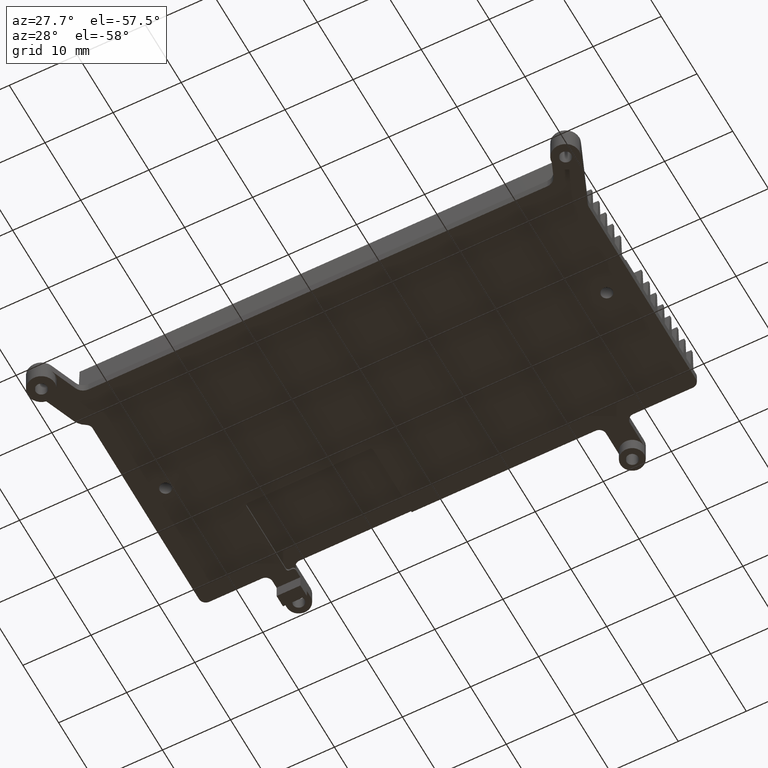
[diagram: clean part render]
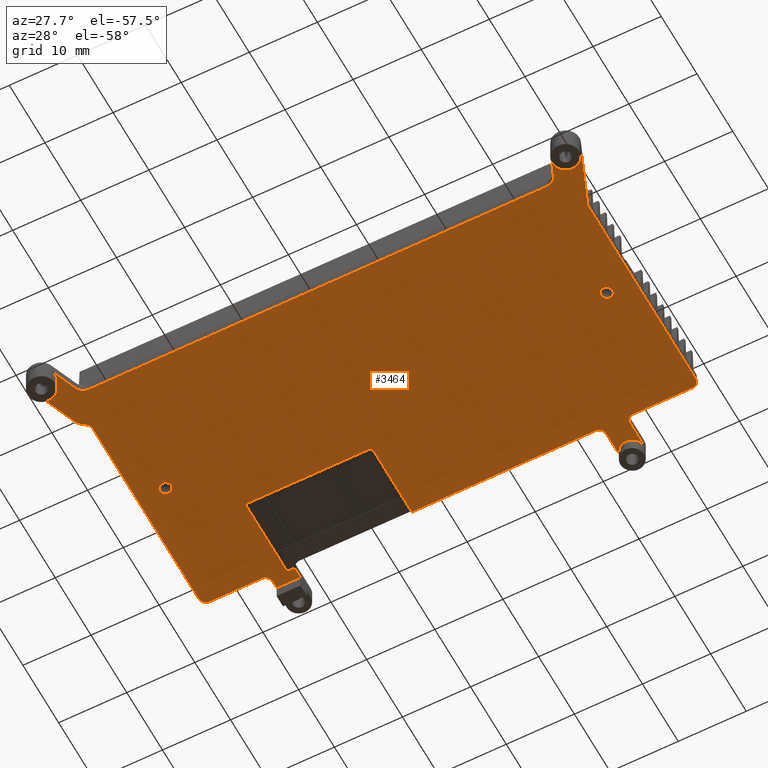
[diagram: same view with one face highlighted and labeled with its STEP entity id]
A machine part, auxiliary view. The second image highlights one B-rep face of the part: STEP entity #3464.
In plain terms, the highlighted planar face has unit normal (0, 0, -1).
Its self-contained STEP definition (entity closure, byte-faithful):
#7 = VERTEX_POINT ( 'NONE', #2980 ) ;
#32 = CARTESIAN_POINT ( 'NONE',  ( -40.31943022758854767, -24.95338786627615235, -7.400000000000000355 ) ) ;
#44 = ORIENTED_EDGE ( 'NONE', *, *, #4306, .T. ) ;
#47 = AXIS2_PLACEMENT_3D ( 'NONE', #1190, #872, #3624 ) ;
#63 = DIRECTION ( 'NONE',  ( 0.0000000000000000000, 0.0000000000000000000, -1.000000000000000000 ) ) ;
#93 = EDGE_CURVE ( 'NONE', #3641, #2538, #3235, .T. ) ;
#111 = PLANE ( 'NONE',  #2159 ) ;
#125 = VERTEX_POINT ( 'NONE', #1673 ) ;
#127 = ORIENTED_EDGE ( 'NONE', *, *, #2440, .T. ) ;
#136 = ORIENTED_EDGE ( 'NONE', *, *, #3062, .T. ) ;
#177 = VERTEX_POINT ( 'NONE', #2824 ) ;
#178 = AXIS2_PLACEMENT_3D ( 'NONE', #3404, #3744, #3428 ) ;
#190 = VERTEX_POINT ( 'NONE', #3799 ) ;
#208 = DIRECTION ( 'NONE',  ( 0.0000000000000000000, -1.000000000000000000, 0.0000000000000000000 ) ) ;
#216 = CARTESIAN_POINT ( 'NONE',  ( 51.58500000000000085, 14.53570848731999909, -7.400000000000000355 ) ) ;
#226 = VERTEX_POINT ( 'NONE', #2415 ) ;
#229 = VERTEX_POINT ( 'NONE', #4575 ) ;
#231 = CARTESIAN_POINT ( 'NONE',  ( -35.99940000000000140, -30.20401168865000230, -7.400000000000000355 ) ) ;
#235 = LINE ( 'NONE', #2216, #3857 ) ;
#243 = AXIS2_PLACEMENT_3D ( 'NONE', #3002, #570, #951 ) ;
#261 = VECTOR ( 'NONE', #208, 1000.000000000000000 ) ;
#304 = EDGE_CURVE ( 'NONE', #4294, #1779, #4044, .T. ) ;
#307 = DIRECTION ( 'NONE',  ( 1.000000000000000000, 0.0000000000000000000, 0.0000000000000000000 ) ) ;
#358 = CARTESIAN_POINT ( 'NONE',  ( -21.74939999790000300, 15.53570848732000087, -7.400000000000000355 ) ) ;
#363 = CARTESIAN_POINT ( 'NONE',  ( 21.74939999790000300, 15.53570848732000087, -7.400000000000000355 ) ) ;
#375 = CARTESIAN_POINT ( 'NONE',  ( -23.51940000000000097, 3.379350000000000076, -7.400000000000000355 ) ) ;
#376 = VERTEX_POINT ( 'NONE', #4142 ) ;
#377 = ORIENTED_EDGE ( 'NONE', *, *, #2147, .T. ) ;
#399 = EDGE_CURVE ( 'NONE', #2978, #2318, #4099, .T. ) ;
#414 = CIRCLE ( 'NONE', #3878, 2.500000000000002220 ) ;
#424 = CIRCLE ( 'NONE', #2249, 1.000000000000000888 ) ;
#427 = VERTEX_POINT ( 'NONE', #2519 ) ;
#428 = CARTESIAN_POINT ( 'NONE',  ( -5.259400000000000297, -30.20401168865000230, -7.400000000000000355 ) ) ;
#431 = VERTEX_POINT ( 'NONE', #4296 ) ;
#433 = AXIS2_PLACEMENT_3D ( 'NONE', #3885, #787, #759 ) ;
#441 = FACE_BOUND ( 'NONE', #2173, .T. ) ;
#454 = EDGE_CURVE ( 'NONE', #431, #523, #1419, .T. ) ;
#488 = ORIENTED_EDGE ( 'NONE', *, *, #3023, .T. ) ;
#491 = AXIS2_PLACEMENT_3D ( 'NONE', #1367, #3081, #3816 ) ;
#523 = VERTEX_POINT ( 'NONE', #1593 ) ;
#544 = DIRECTION ( 'NONE',  ( 0.0000000000000000000, -1.000000000000000000, 0.0000000000000000000 ) ) ;
#569 = EDGE_CURVE ( 'NONE', #3966, #1540, #2554, .T. ) ;
#570 = DIRECTION ( 'NONE',  ( 0.0000000000000000000, 0.0000000000000000000, -1.000000000000000000 ) ) ;
#573 = ORIENTED_EDGE ( 'NONE', *, *, #933, .T. ) ;
#586 = VERTEX_POINT ( 'NONE', #4463 ) ;
#611 = DIRECTION ( 'NONE',  ( -0.3746065934160814348, 0.9271838545667189235, 0.0000000000000000000 ) ) ;
#618 = DIRECTION ( 'NONE',  ( 0.0000000000000000000, 1.000000000000000000, 0.0000000000000000000 ) ) ;
#620 = CARTESIAN_POINT ( 'NONE',  ( 32.89999999999999858, -3.612280097539999790, -7.400000000000000355 ) ) ;
#622 = EDGE_LOOP ( 'NONE', ( #2378, #739 ) ) ;
#625 = EDGE_CURVE ( 'NONE', #7, #431, #1786, .T. ) ;
#728 = EDGE_CURVE ( 'NONE', #1203, #2706, #2933, .T. ) ;
#739 = ORIENTED_EDGE ( 'NONE', *, *, #728, .T. ) ;
#753 = CIRCLE ( 'NONE', #1280, 1.500000000000001332 ) ;
#759 = DIRECTION ( 'NONE',  ( 1.000000000000000000, 0.0000000000000000000, 0.0000000000000000000 ) ) ;
#787 = DIRECTION ( 'NONE',  ( 0.0000000000000000000, 0.0000000000000000000, 1.000000000000000000 ) ) ;
#790 = DIRECTION ( 'NONE',  ( 0.0000000000000000000, 1.000000000000000000, 0.0000000000000000000 ) ) ;
#805 = CARTESIAN_POINT ( 'NONE',  ( 51.58500000000000085, 14.53570848731999909, -7.400000000000000355 ) ) ;
#810 = VERTEX_POINT ( 'NONE', #1483 ) ;
#826 = DIRECTION ( 'NONE',  ( 0.0000000000000000000, 0.0000000000000000000, 1.000000000000000000 ) ) ;
#872 = DIRECTION ( 'NONE',  ( 0.0000000000000000000, 0.0000000000000000000, 1.000000000000000000 ) ) ;
#907 = DIRECTION ( 'NONE',  ( 0.3746065934153118837, -0.9271838545670297860, 0.0000000000000000000 ) ) ;
#911 = CARTESIAN_POINT ( 'NONE',  ( 26.24929999789999968, -30.20401168865000230, -7.400000000000000355 ) ) ;
#915 = CARTESIAN_POINT ( 'NONE',  ( -23.85940000000000083, -30.20401168865000230, -7.400000000000000355 ) ) ;
#916 = LINE ( 'NONE', #428, #972 ) ;
#933 = EDGE_CURVE ( 'NONE', #2167, #2876, #3654, .T. ) ;
#934 = CARTESIAN_POINT ( 'NONE',  ( 36.99940000000000140, -30.20401168865000230, -7.400000000000000355 ) ) ;
#939 = VERTEX_POINT ( 'NONE', #1650 ) ;
#951 = DIRECTION ( 'NONE',  ( -1.000000000000000000, 0.0000000000000000000, 0.0000000000000000000 ) ) ;
#955 = EDGE_CURVE ( 'NONE', #2132, #939, #3547, .T. ) ;
#970 = ORIENTED_EDGE ( 'NONE', *, *, #2314, .T. ) ;
#971 = AXIS2_PLACEMENT_3D ( 'NONE', #620, #1637, #3048 ) ;
#972 = VECTOR ( 'NONE', #3889, 1000.000000000000000 ) ;
#1011 = DIRECTION ( 'NONE',  ( -0.3746065934156413979, -0.9271838545668966702, 0.0000000000000000000 ) ) ;
#1035 = ORIENTED_EDGE ( 'NONE', *, *, #4582, .T. ) ;
#1046 = ORIENTED_EDGE ( 'NONE', *, *, #625, .T. ) ;
#1057 = VECTOR ( 'NONE', #907, 1000.000000000000227 ) ;
#1075 = ORIENTED_EDGE ( 'NONE', *, *, #3881, .T. ) ;
#1111 = LINE ( 'NONE', #1336, #2073 ) ;
#1114 = CIRCLE ( 'NONE', #433, 1.000000000000000888 ) ;
#1118 = EDGE_CURVE ( 'NONE', #2876, #7, #3994, .T. ) ;
#1124 = AXIS2_PLACEMENT_3D ( 'NONE', #3713, #4489, #2031 ) ;
#1132 = ORIENTED_EDGE ( 'NONE', *, *, #2065, .T. ) ;
#1149 = VECTOR ( 'NONE', #3613, 1000.000000000000000 ) ;
#1154 = CARTESIAN_POINT ( 'NONE',  ( 27.24929999789999968, 14.53570848731999909, -7.400000000000000355 ) ) ;
#1172 = CARTESIAN_POINT ( 'NONE',  ( -23.51940000000000097, 15.07934999999999981, -7.400000000000000355 ) ) ;
#1190 = CARTESIAN_POINT ( 'NONE',  ( 32.89999999999999858, -3.612280097539999790, -7.400000000000000355 ) ) ;
#1193 = EDGE_CURVE ( 'NONE', #523, #3502, #1516, .T. ) ;
#1203 = VERTEX_POINT ( 'NONE', #1759 ) ;
#1223 = CARTESIAN_POINT ( 'NONE',  ( 37.10862421815000545, -17.00636412341999915, -7.400000000000000355 ) ) ;
#1234 = DIRECTION ( 'NONE',  ( 0.0000000000000000000, 0.0000000000000000000, -1.000000000000000000 ) ) ;
#1273 = DIRECTION ( 'NONE',  ( 0.0000000000000000000, -1.000000000000000000, 0.0000000000000000000 ) ) ;
#1280 = AXIS2_PLACEMENT_3D ( 'NONE', #2831, #4544, #3200 ) ;
#1286 = DIRECTION ( 'NONE',  ( 1.000000000000000000, 0.0000000000000000000, 0.0000000000000000000 ) ) ;
#1296 = DIRECTION ( 'NONE',  ( 0.0000000000000000000, 0.0000000000000000000, 1.000000000000000000 ) ) ;
#1309 = ORIENTED_EDGE ( 'NONE', *, *, #3759, .T. ) ;
#1314 = VERTEX_POINT ( 'NONE', #2095 ) ;
#1326 = CARTESIAN_POINT ( 'NONE',  ( 51.58500000000000085, 14.53570848731999909, -7.400000000000000355 ) ) ;
#1328 = VERTEX_POINT ( 'NONE', #375 ) ;
#1331 = EDGE_CURVE ( 'NONE', #4246, #1314, #1843, .T. ) ;
#1332 = VECTOR ( 'NONE', #611, 1000.000000000000114 ) ;
#1336 = CARTESIAN_POINT ( 'NONE',  ( -40.35377134993999704, -25.03838512673999972, -7.400000000000000355 ) ) ;
#1348 = VERTEX_POINT ( 'NONE', #1438 ) ;
#1367 = CARTESIAN_POINT ( 'NONE',  ( -38.50055000000000405, -25.78757958295000208, -7.400000000000000355 ) ) ;
#1374 = CIRCLE ( 'NONE', #1124, 0.8500000000000000888 ) ;
#1413 = CARTESIAN_POINT ( 'NONE',  ( 51.58500000000000085, 15.07934999999999981, -7.400000000000000355 ) ) ;
#1419 = LINE ( 'NONE', #2252, #1954 ) ;
#1421 = DIRECTION ( 'NONE',  ( -1.000000000000000000, 0.0000000000000000000, 0.0000000000000000000 ) ) ;
#1438 = CARTESIAN_POINT ( 'NONE',  ( 33.70353244259000292, -21.76026868239999956, -7.400000000000000355 ) ) ;
#1457 = ORIENTED_EDGE ( 'NONE', *, *, #304, .T. ) ;
#1458 = EDGE_CURVE ( 'NONE', #586, #376, #414, .T. ) ;
#1466 = ORIENTED_EDGE ( 'NONE', *, *, #1118, .T. ) ;
#1483 = CARTESIAN_POINT ( 'NONE',  ( 36.99940000000000140, 13.53570848732000087, -7.400000000000000355 ) ) ;
#1500 = ORIENTED_EDGE ( 'NONE', *, *, #4011, .T. ) ;
#1516 = CIRCLE ( 'NONE', #3723, 1.000000000000000888 ) ;
#1517 = CARTESIAN_POINT ( 'NONE',  ( 33.75000000000000000, -3.612280097539999790, -7.400000000000000355 ) ) ;
#1535 = LINE ( 'NONE', #1413, #3776 ) ;
#1540 = VERTEX_POINT ( 'NONE', #4002 ) ;
#1549 = DIRECTION ( 'NONE',  ( -1.000000000000000000, 0.0000000000000000000, 0.0000000000000000000 ) ) ;
#1551 = DIRECTION ( 'NONE',  ( 1.000000000000000000, 0.0000000000000000000, 0.0000000000000000000 ) ) ;
#1583 = DIRECTION ( 'NONE',  ( 0.0000000000000000000, 0.0000000000000000000, 1.000000000000000000 ) ) ;
#1593 = CARTESIAN_POINT ( 'NONE',  ( -22.74939999790000300, 15.53570848732000087, -7.400000000000000355 ) ) ;
#1606 = DIRECTION ( 'NONE',  ( 1.000000000000000000, 0.0000000000000000000, 0.0000000000000000000 ) ) ;
#1637 = DIRECTION ( 'NONE',  ( 0.0000000000000000000, 0.0000000000000000000, 1.000000000000000000 ) ) ;
#1646 = EDGE_CURVE ( 'NONE', #3120, #2149, #2661, .T. ) ;
#1650 = CARTESIAN_POINT ( 'NONE',  ( -34.99940000000000140, 14.53570848731999909, -7.400000000000000355 ) ) ;
#1663 = ORIENTED_EDGE ( 'NONE', *, *, #1998, .T. ) ;
#1664 = VECTOR ( 'NONE', #618, 1000.000000000000000 ) ;
#1666 = CIRCLE ( 'NONE', #4162, 2.001049999994980233 ) ;
#1673 = CARTESIAN_POINT ( 'NONE',  ( 35.09430822444669928, -22.69835879228730136, -7.400000000000000355 ) ) ;
#1675 = EDGE_CURVE ( 'NONE', #1940, #427, #3386, .T. ) ;
#1677 = VERTEX_POINT ( 'NONE', #4045 ) ;
#1700 = EDGE_CURVE ( 'NONE', #1314, #3120, #2821, .T. ) ;
#1702 = EDGE_CURVE ( 'NONE', #2429, #177, #2111, .T. ) ;
#1704 = CARTESIAN_POINT ( 'NONE',  ( -27.24929999789999968, 14.53570848731999909, -7.400000000000000355 ) ) ;
#1717 = CIRCLE ( 'NONE', #2421, 1.999949999998362760 ) ;
#1721 = DIRECTION ( 'NONE',  ( -1.000000000000000000, 0.0000000000000000000, 0.0000000000000000000 ) ) ;
#1742 = AXIS2_PLACEMENT_3D ( 'NONE', #2425, #3453, #2715 ) ;
#1759 = CARTESIAN_POINT ( 'NONE',  ( 32.05000000000000426, -3.612280097539999790, -7.400000000000000355 ) ) ;
#1778 = VECTOR ( 'NONE', #307, 1000.000000000000000 ) ;
#1779 = VERTEX_POINT ( 'NONE', #4573 ) ;
#1786 = LINE ( 'NONE', #2348, #2230 ) ;
#1787 = DIRECTION ( 'NONE',  ( -1.000000000000000000, 0.0000000000000000000, 0.0000000000000000000 ) ) ;
#1843 = LINE ( 'NONE', #4320, #4499 ) ;
#1848 = DIRECTION ( 'NONE',  ( 0.0000000000000000000, 0.0000000000000000000, -1.000000000000000000 ) ) ;
#1861 = CARTESIAN_POINT ( 'NONE',  ( 36.49950000000164607, -25.78757958323000210, -7.400000000000000355 ) ) ;
#1894 = ORIENTED_EDGE ( 'NONE', *, *, #4561, .T. ) ;
#1926 = CARTESIAN_POINT ( 'NONE',  ( 36.64512865006540210, -26.53677403974094773, -7.400000000000000355 ) ) ;
#1928 = CARTESIAN_POINT ( 'NONE',  ( -5.259400000000000297, 14.53570848731999909, -7.400000000000000355 ) ) ;
#1935 = EDGE_CURVE ( 'NONE', #3697, #1328, #2324, .T. ) ;
#1936 = ORIENTED_EDGE ( 'NONE', *, *, #569, .F. ) ;
#1940 = VERTEX_POINT ( 'NONE', #1928 ) ;
#1951 = ORIENTED_EDGE ( 'NONE', *, *, #1935, .T. ) ;
#1954 = VECTOR ( 'NONE', #544, 1000.000000000000000 ) ;
#1965 = LINE ( 'NONE', #1223, #1057 ) ;
#1970 = CARTESIAN_POINT ( 'NONE',  ( 26.24929999789999968, 19.53570848732000087, -7.400000000000000355 ) ) ;
#1998 = EDGE_CURVE ( 'NONE', #229, #177, #4036, .T. ) ;
#2020 = DIRECTION ( 'NONE',  ( -1.000000000000000000, 2.312964634635740689E-15, 0.0000000000000000000 ) ) ;
#2023 = DIRECTION ( 'NONE',  ( 0.0000000000000000000, 0.0000000000000000000, 1.000000000000000000 ) ) ;
#2030 = DIRECTION ( 'NONE',  ( 0.3746065934149729326, 0.9271838545671667875, 0.0000000000000000000 ) ) ;
#2031 = DIRECTION ( 'NONE',  ( 1.000000000000000000, 0.0000000000000000000, 0.0000000000000000000 ) ) ;
#2034 = EDGE_CURVE ( 'NONE', #125, #1348, #4429, .T. ) ;
#2064 = EDGE_CURVE ( 'NONE', #226, #2132, #2595, .T. ) ;
#2065 = EDGE_CURVE ( 'NONE', #1328, #2978, #2868, .T. ) ;
#2073 = VECTOR ( 'NONE', #2030, 1000.000000000000000 ) ;
#2078 = VERTEX_POINT ( 'NONE', #3077 ) ;
#2086 = AXIS2_PLACEMENT_3D ( 'NONE', #2308, #2023, #4434 ) ;
#2095 = CARTESIAN_POINT ( 'NONE',  ( 22.74939999790000300, 19.53570848732000087, -7.400000000000000355 ) ) ;
#2107 = CARTESIAN_POINT ( 'NONE',  ( 26.24929999789999968, 15.53570848732000087, -7.400000000000000355 ) ) ;
#2111 = CIRCLE ( 'NONE', #491, 2.001049999994980233 ) ;
#2132 = VERTEX_POINT ( 'NONE', #2418 ) ;
#2136 = CARTESIAN_POINT ( 'NONE',  ( -36.49950000000499983, -25.78757958295000208, -7.400000000000000355 ) ) ;
#2142 = CARTESIAN_POINT ( 'NONE',  ( -5.259400000000000297, 3.719350000000000378, -7.400000000000000355 ) ) ;
#2147 = EDGE_CURVE ( 'NONE', #3594, #229, #753, .T. ) ;
#2149 = VERTEX_POINT ( 'NONE', #2107 ) ;
#2152 = CARTESIAN_POINT ( 'NONE',  ( 35.99940000000000140, 13.53570848732000087, -7.400000000000000355 ) ) ;
#2159 = AXIS2_PLACEMENT_3D ( 'NONE', #3617, #2228, #3301 ) ;
#2167 = VERTEX_POINT ( 'NONE', #1704 ) ;
#2173 = EDGE_LOOP ( 'NONE', ( #1894, #1457 ) ) ;
#2177 = VECTOR ( 'NONE', #3409, 1000.000000000000000 ) ;
#2200 = EDGE_CURVE ( 'NONE', #3502, #190, #2754, .T. ) ;
#2216 = CARTESIAN_POINT ( 'NONE',  ( 51.58500000000000085, -21.76026868239999956, -7.400000000000000355 ) ) ;
#2218 = AXIS2_PLACEMENT_3D ( 'NONE', #3385, #1296, #2352 ) ;
#2221 = CIRCLE ( 'NONE', #3848, 1.000000000000000888 ) ;
#2228 = DIRECTION ( 'NONE',  ( 0.0000000000000000000, 0.0000000000000000000, -1.000000000000000000 ) ) ;
#2230 = VECTOR ( 'NONE', #1606, 1000.000000000000000 ) ;
#2249 = AXIS2_PLACEMENT_3D ( 'NONE', #4384, #2617, #2633 ) ;
#2252 = CARTESIAN_POINT ( 'NONE',  ( -22.74939999790000300, 19.53570848732000087, -7.400000000000000355 ) ) ;
#2255 = CARTESIAN_POINT ( 'NONE',  ( -23.51940000000000097, 3.719350000000000378, -7.400000000000000355 ) ) ;
#2268 = EDGE_CURVE ( 'NONE', #2538, #810, #2221, .T. ) ;
#2278 = VERTEX_POINT ( 'NONE', #2550 ) ;
#2283 = VECTOR ( 'NONE', #2406, 1000.000000000000000 ) ;
#2308 = CARTESIAN_POINT ( 'NONE',  ( -27.24929999789999968, 15.53570848732000087, -7.400000000000000355 ) ) ;
#2314 = EDGE_CURVE ( 'NONE', #2318, #1940, #916, .T. ) ;
#2318 = VERTEX_POINT ( 'NONE', #2142 ) ;
#2324 = CIRCLE ( 'NONE', #2515, 0.3400000000000000244 ) ;
#2348 = CARTESIAN_POINT ( 'NONE',  ( 51.58500000000000085, 16.68570848729999767, -7.400000000000000355 ) ) ;
#2352 = DIRECTION ( 'NONE',  ( 1.000000000000000000, 0.0000000000000000000, 0.0000000000000000000 ) ) ;
#2360 = EDGE_CURVE ( 'NONE', #1348, #3594, #235, .T. ) ;
#2369 = CARTESIAN_POINT ( 'NONE',  ( -22.74858939407959824, 15.49545242494929909, -7.400000000000000355 ) ) ;
#2378 = ORIENTED_EDGE ( 'NONE', *, *, #2729, .T. ) ;
#2383 = CARTESIAN_POINT ( 'NONE',  ( -32.75000000000000000, -3.612280097539999790, -7.400000000000000355 ) ) ;
#2406 = DIRECTION ( 'NONE',  ( 0.0000000000000000000, 1.000000000000000000, 0.0000000000000000000 ) ) ;
#2415 = CARTESIAN_POINT ( 'NONE',  ( -35.99940000000000140, -16.18790348073000018, -7.400000000000000355 ) ) ;
#2418 = CARTESIAN_POINT ( 'NONE',  ( -35.99940000000000140, 13.53570848732000087, -7.400000000000000355 ) ) ;
#2421 = AXIS2_PLACEMENT_3D ( 'NONE', #3250, #1234, #4370 ) ;
#2425 = CARTESIAN_POINT ( 'NONE',  ( 24.49934999790000134, 19.53570848732000087, -7.400000000000000355 ) ) ;
#2429 = VERTEX_POINT ( 'NONE', #2136 ) ;
#2440 = EDGE_CURVE ( 'NONE', #427, #4246, #3975, .T. ) ;
#2443 = VECTOR ( 'NONE', #1286, 1000.000000000000000 ) ;
#2472 = DIRECTION ( 'NONE',  ( -1.000000000000000000, 0.0000000000000000000, 0.0000000000000000000 ) ) ;
#2502 = DIRECTION ( 'NONE',  ( 0.0000000000000000000, 0.0000000000000000000, 1.000000000000000000 ) ) ;
#2513 = LINE ( 'NONE', #805, #1149 ) ;
#2515 = AXIS2_PLACEMENT_3D ( 'NONE', #2255, #3511, #1551 ) ;
#2519 = CARTESIAN_POINT ( 'NONE',  ( 21.74939999790000300, 14.53570848731999909, -7.400000000000000355 ) ) ;
#2520 = DIRECTION ( 'NONE',  ( 0.0000000000000000000, 0.0000000000000000000, 1.000000000000000000 ) ) ;
#2522 = EDGE_LOOP ( 'NONE', ( #377, #1663, #3785, #3529, #44, #2627, #1075, #4134, #4343, #488, #573, #1466, #1046, #3031, #2969, #2785, #1309, #1500, #3532, #1951, #1132, #2818, #970, #2850, #127, #3039, #3941, #2703, #136, #3163, #4425, #1035, #4090, #3840, #1936, #3509, #3830, #2946, #4062 ) ) ;
#2538 = VERTEX_POINT ( 'NONE', #4298 ) ;
#2550 = CARTESIAN_POINT ( 'NONE',  ( -23.85940000000000083, 14.73934999999999995, -7.400000000000000355 ) ) ;
#2552 = DIRECTION ( 'NONE',  ( -1.000000000000000000, 0.0000000000000000000, 0.0000000000000000000 ) ) ;
#2554 = CIRCLE ( 'NONE', #243, 1.999949999998362760 ) ;
#2580 = DIRECTION ( 'NONE',  ( 0.0000000000000000000, 0.0000000000000000000, -1.000000000000000000 ) ) ;
#2584 = EDGE_CURVE ( 'NONE', #2078, #1677, #2921, .T. ) ;
#2585 = EDGE_CURVE ( 'NONE', #4085, #3966, #1717, .T. ) ;
#2595 = LINE ( 'NONE', #231, #1664 ) ;
#2617 = DIRECTION ( 'NONE',  ( 0.0000000000000000000, 0.0000000000000000000, 1.000000000000000000 ) ) ;
#2627 = ORIENTED_EDGE ( 'NONE', *, *, #1458, .T. ) ;
#2633 = DIRECTION ( 'NONE',  ( -1.000000000000000000, 0.0000000000000000000, 0.0000000000000000000 ) ) ;
#2661 = LINE ( 'NONE', #911, #4088 ) ;
#2682 = CIRCLE ( 'NONE', #4442, 0.3400000000000000244 ) ;
#2684 = CARTESIAN_POINT ( 'NONE',  ( -26.24929999789999968, 15.53570848732000087, -7.400000000000000355 ) ) ;
#2685 = AXIS2_PLACEMENT_3D ( 'NONE', #3608, #63, #3898 ) ;
#2703 = ORIENTED_EDGE ( 'NONE', *, *, #1646, .T. ) ;
#2706 = VERTEX_POINT ( 'NONE', #1517 ) ;
#2715 = DIRECTION ( 'NONE',  ( -1.000000000000000000, 0.0000000000000000000, 0.0000000000000000000 ) ) ;
#2729 = EDGE_CURVE ( 'NONE', #2706, #1203, #3344, .T. ) ;
#2737 = FACE_OUTER_BOUND ( 'NONE', #2522, .T. ) ;
#2754 = CIRCLE ( 'NONE', #2685, 0.4000000000000010214 ) ;
#2763 = VERTEX_POINT ( 'NONE', #1172 ) ;
#2785 = ORIENTED_EDGE ( 'NONE', *, *, #2200, .T. ) ;
#2800 = DIRECTION ( 'NONE',  ( 0.0000000000000000000, 0.0000000000000000000, 1.000000000000000000 ) ) ;
#2818 = ORIENTED_EDGE ( 'NONE', *, *, #399, .T. ) ;
#2821 = CIRCLE ( 'NONE', #1742, 1.749950000000000117 ) ;
#2824 = CARTESIAN_POINT ( 'NONE',  ( -36.63857606550119783, -26.52055582385210286, -7.400000000000000355 ) ) ;
#2831 = CARTESIAN_POINT ( 'NONE',  ( -33.70353244259000292, -23.26026868240000312, -7.400000000000000355 ) ) ;
#2850 = ORIENTED_EDGE ( 'NONE', *, *, #1675, .T. ) ;
#2852 = CARTESIAN_POINT ( 'NONE',  ( -23.85940000000000083, 3.719350000000000378, -7.400000000000000355 ) ) ;
#2863 = DIRECTION ( 'NONE',  ( -1.000000000000000000, 0.0000000000000000000, 0.0000000000000000000 ) ) ;
#2868 = LINE ( 'NONE', #3061, #1778 ) ;
#2876 = VERTEX_POINT ( 'NONE', #2684 ) ;
#2921 = CIRCLE ( 'NONE', #3431, 1.500000000000001332 ) ;
#2930 = DIRECTION ( 'NONE',  ( -1.000000000000000000, 0.0000000000000000000, 0.0000000000000000000 ) ) ;
#2933 = CIRCLE ( 'NONE', #971, 0.8499999999999965361 ) ;
#2946 = ORIENTED_EDGE ( 'NONE', *, *, #2034, .T. ) ;
#2969 = ORIENTED_EDGE ( 'NONE', *, *, #1193, .T. ) ;
#2978 = VERTEX_POINT ( 'NONE', #3568 ) ;
#2980 = CARTESIAN_POINT ( 'NONE',  ( -26.24929999789999968, 16.68570848729999767, -7.400000000000000355 ) ) ;
#3002 = CARTESIAN_POINT ( 'NONE',  ( 38.49944999999999595, -25.78757958323000210, -7.400000000000000355 ) ) ;
#3023 = EDGE_CURVE ( 'NONE', #939, #2167, #2513, .T. ) ;
#3031 = ORIENTED_EDGE ( 'NONE', *, *, #454, .T. ) ;
#3039 = ORIENTED_EDGE ( 'NONE', *, *, #1331, .T. ) ;
#3048 = DIRECTION ( 'NONE',  ( 1.000000000000000000, 0.0000000000000000000, 0.0000000000000000000 ) ) ;
#3061 = CARTESIAN_POINT ( 'NONE',  ( 51.58500000000000085, 3.379350000000000076, -7.400000000000000355 ) ) ;
#3062 = EDGE_CURVE ( 'NONE', #2149, #3641, #424, .T. ) ;
#3077 = CARTESIAN_POINT ( 'NONE',  ( 36.99940000000000140, -16.44445423331000100, -7.400000000000000355 ) ) ;
#3081 = DIRECTION ( 'NONE',  ( 0.0000000000000000000, 0.0000000000000000000, -1.000000000000000000 ) ) ;
#3096 = AXIS2_PLACEMENT_3D ( 'NONE', #3925, #826, #3259 ) ;
#3120 = VERTEX_POINT ( 'NONE', #1970 ) ;
#3131 = EDGE_CURVE ( 'NONE', #3342, #2429, #1666, .T. ) ;
#3163 = ORIENTED_EDGE ( 'NONE', *, *, #93, .T. ) ;
#3185 = VECTOR ( 'NONE', #1273, 1000.000000000000000 ) ;
#3200 = DIRECTION ( 'NONE',  ( -1.000000000000000000, 0.0000000000000000000, 0.0000000000000000000 ) ) ;
#3235 = LINE ( 'NONE', #1326, #2177 ) ;
#3250 = CARTESIAN_POINT ( 'NONE',  ( 38.49944999999999595, -25.78757958323000210, -7.400000000000000355 ) ) ;
#3259 = DIRECTION ( 'NONE',  ( 1.000000000000000000, 0.0000000000000000000, 0.0000000000000000000 ) ) ;
#3301 = DIRECTION ( 'NONE',  ( 0.0000000000000000000, -1.000000000000000000, 0.0000000000000000000 ) ) ;
#3342 = VERTEX_POINT ( 'NONE', #32 ) ;
#3343 = CARTESIAN_POINT ( 'NONE',  ( -23.51940000000000097, 14.73934999999999995, -7.400000000000000355 ) ) ;
#3344 = CIRCLE ( 'NONE', #47, 0.8499999999999965361 ) ;
#3385 = CARTESIAN_POINT ( 'NONE',  ( -31.89999999999999858, -3.612280097539999790, -7.400000000000000355 ) ) ;
#3386 = LINE ( 'NONE', #216, #2443 ) ;
#3404 = CARTESIAN_POINT ( 'NONE',  ( -34.99940000000000140, 13.53570848732000087, -7.400000000000000355 ) ) ;
#3409 = DIRECTION ( 'NONE',  ( 1.000000000000000000, 0.0000000000000000000, 0.0000000000000000000 ) ) ;
#3428 = DIRECTION ( 'NONE',  ( -1.000000000000000000, 0.0000000000000000000, 0.0000000000000000000 ) ) ;
#3431 = AXIS2_PLACEMENT_3D ( 'NONE', #4283, #2520, #2863 ) ;
#3447 = CARTESIAN_POINT ( 'NONE',  ( 36.64512865006999931, -26.53677403974999649, -7.400000000000000355 ) ) ;
#3453 = DIRECTION ( 'NONE',  ( 0.0000000000000000000, 0.0000000000000000000, 1.000000000000000000 ) ) ;
#3464 = ADVANCED_FACE ( 'NONE', ( #2737, #3465, #441 ), #111, .T. ) ;
#3465 = FACE_BOUND ( 'NONE', #622, .T. ) ;
#3502 = VERTEX_POINT ( 'NONE', #2369 ) ;
#3509 = ORIENTED_EDGE ( 'NONE', *, *, #2585, .F. ) ;
#3511 = DIRECTION ( 'NONE',  ( 0.0000000000000000000, 0.0000000000000000000, 1.000000000000000000 ) ) ;
#3529 = ORIENTED_EDGE ( 'NONE', *, *, #3131, .F. ) ;
#3532 = ORIENTED_EDGE ( 'NONE', *, *, #4563, .T. ) ;
#3547 = CIRCLE ( 'NONE', #178, 1.000000000000000888 ) ;
#3556 = EDGE_CURVE ( 'NONE', #4085, #125, #4297, .T. ) ;
#3568 = CARTESIAN_POINT ( 'NONE',  ( -5.599400000000000155, 3.379350000000000076, -7.400000000000000355 ) ) ;
#3594 = VERTEX_POINT ( 'NONE', #3768 ) ;
#3608 = CARTESIAN_POINT ( 'NONE',  ( -23.14826515254999961, 15.47935000000000016, -7.400000000000000355 ) ) ;
#3613 = DIRECTION ( 'NONE',  ( 1.000000000000000000, 0.0000000000000000000, 0.0000000000000000000 ) ) ;
#3617 = CARTESIAN_POINT ( 'NONE',  ( 51.58500000000000085, -30.20401168865000230, -7.400000000000000355 ) ) ;
#3621 = AXIS2_PLACEMENT_3D ( 'NONE', #4122, #4089, #2020 ) ;
#3624 = DIRECTION ( 'NONE',  ( 1.000000000000000000, 0.0000000000000000000, 0.0000000000000000000 ) ) ;
#3641 = VERTEX_POINT ( 'NONE', #1154 ) ;
#3654 = CIRCLE ( 'NONE', #2086, 1.000000000000000888 ) ;
#3697 = VERTEX_POINT ( 'NONE', #2852 ) ;
#3713 = CARTESIAN_POINT ( 'NONE',  ( -31.89999999999999858, -3.612280097539999790, -7.400000000000000355 ) ) ;
#3723 = AXIS2_PLACEMENT_3D ( 'NONE', #358, #2800, #1421 ) ;
#3744 = DIRECTION ( 'NONE',  ( 0.0000000000000000000, 0.0000000000000000000, -1.000000000000000000 ) ) ;
#3759 = EDGE_CURVE ( 'NONE', #190, #2763, #1535, .T. ) ;
#3768 = CARTESIAN_POINT ( 'NONE',  ( -33.70353244259000292, -21.76026868239999956, -7.400000000000000355 ) ) ;
#3776 = VECTOR ( 'NONE', #1721, 1000.000000000000000 ) ;
#3785 = ORIENTED_EDGE ( 'NONE', *, *, #1702, .F. ) ;
#3799 = CARTESIAN_POINT ( 'NONE',  ( -23.14826515254999961, 15.07934999999999981, -7.400000000000000355 ) ) ;
#3800 = VECTOR ( 'NONE', #1011, 1000.000000000000114 ) ;
#3816 = DIRECTION ( 'NONE',  ( -1.000000000000000000, 0.0000000000000000000, 0.0000000000000000000 ) ) ;
#3830 = ORIENTED_EDGE ( 'NONE', *, *, #3556, .T. ) ;
#3840 = ORIENTED_EDGE ( 'NONE', *, *, #4063, .T. ) ;
#3848 = AXIS2_PLACEMENT_3D ( 'NONE', #2152, #3916, #1787 ) ;
#3857 = VECTOR ( 'NONE', #1549, 1000.000000000000000 ) ;
#3878 = AXIS2_PLACEMENT_3D ( 'NONE', #4379, #2580, #2930 ) ;
#3879 = LINE ( 'NONE', #934, #3185 ) ;
#3881 = EDGE_CURVE ( 'NONE', #376, #226, #1114, .T. ) ;
#3885 = CARTESIAN_POINT ( 'NONE',  ( -36.99940000000000140, -16.18790348073000018, -7.400000000000000355 ) ) ;
#3887 = CARTESIAN_POINT ( 'NONE',  ( -38.50055000000000405, -25.78757958295000208, -7.400000000000000355 ) ) ;
#3889 = DIRECTION ( 'NONE',  ( 0.0000000000000000000, 1.000000000000000000, 0.0000000000000000000 ) ) ;
#3898 = DIRECTION ( 'NONE',  ( -1.000000000000000000, 0.0000000000000000000, 0.0000000000000000000 ) ) ;
#3916 = DIRECTION ( 'NONE',  ( 0.0000000000000000000, 0.0000000000000000000, -1.000000000000000000 ) ) ;
#3925 = CARTESIAN_POINT ( 'NONE',  ( -5.599400000000000155, 3.719350000000000378, -7.400000000000000355 ) ) ;
#3941 = ORIENTED_EDGE ( 'NONE', *, *, #1700, .T. ) ;
#3952 = AXIS2_PLACEMENT_3D ( 'NONE', #363, #2502, #2472 ) ;
#3966 = VERTEX_POINT ( 'NONE', #1861 ) ;
#3975 = CIRCLE ( 'NONE', #3952, 1.000000000000000888 ) ;
#3994 = LINE ( 'NONE', #4531, #2283 ) ;
#4002 = CARTESIAN_POINT ( 'NONE',  ( 40.35377134993980519, -25.03838512672965066, -7.400000000000000355 ) ) ;
#4011 = EDGE_CURVE ( 'NONE', #2763, #2278, #2682, .T. ) ;
#4036 = LINE ( 'NONE', #4135, #3800 ) ;
#4044 = CIRCLE ( 'NONE', #2218, 0.8500000000000000888 ) ;
#4045 = CARTESIAN_POINT ( 'NONE',  ( 37.10862421814844936, -17.00636412341999915, -7.400000000000000355 ) ) ;
#4056 = LINE ( 'NONE', #915, #261 ) ;
#4062 = ORIENTED_EDGE ( 'NONE', *, *, #2360, .T. ) ;
#4063 = EDGE_CURVE ( 'NONE', #1677, #1540, #1965, .T. ) ;
#4085 = VERTEX_POINT ( 'NONE', #1926 ) ;
#4088 = VECTOR ( 'NONE', #4104, 1000.000000000000000 ) ;
#4089 = DIRECTION ( 'NONE',  ( 0.0000000000000000000, 0.0000000000000000000, 1.000000000000000000 ) ) ;
#4090 = ORIENTED_EDGE ( 'NONE', *, *, #2584, .T. ) ;
#4099 = CIRCLE ( 'NONE', #3096, 0.3400000000000000244 ) ;
#4104 = DIRECTION ( 'NONE',  ( 0.0000000000000000000, -1.000000000000000000, 0.0000000000000000000 ) ) ;
#4122 = CARTESIAN_POINT ( 'NONE',  ( 33.70353244259000292, -23.26026868240000312, -7.400000000000000355 ) ) ;
#4134 = ORIENTED_EDGE ( 'NONE', *, *, #2064, .T. ) ;
#4135 = CARTESIAN_POINT ( 'NONE',  ( -35.09430822443000153, -22.69835879226000230, -7.400000000000000355 ) ) ;
#4142 = CARTESIAN_POINT ( 'NONE',  ( -36.52040683251855313, -17.06572210977935100, -7.400000000000000355 ) ) ;
#4162 = AXIS2_PLACEMENT_3D ( 'NONE', #3887, #1848, #2552 ) ;
#4246 = VERTEX_POINT ( 'NONE', #4422 ) ;
#4283 = CARTESIAN_POINT ( 'NONE',  ( 38.49940000000000140, -16.44445423331000100, -7.400000000000000355 ) ) ;
#4294 = VERTEX_POINT ( 'NONE', #2383 ) ;
#4296 = CARTESIAN_POINT ( 'NONE',  ( -22.74939999790000300, 16.68570848729999767, -7.400000000000000355 ) ) ;
#4297 = LINE ( 'NONE', #3447, #1332 ) ;
#4298 = CARTESIAN_POINT ( 'NONE',  ( 35.99940000000000140, 14.53570848731999909, -7.400000000000000355 ) ) ;
#4306 = EDGE_CURVE ( 'NONE', #3342, #586, #1111, .T. ) ;
#4320 = CARTESIAN_POINT ( 'NONE',  ( 22.74939999790000300, -30.20401168865000230, -7.400000000000000355 ) ) ;
#4343 = ORIENTED_EDGE ( 'NONE', *, *, #955, .T. ) ;
#4370 = DIRECTION ( 'NONE',  ( -1.000000000000000000, 0.0000000000000000000, 0.0000000000000000000 ) ) ;
#4379 = CARTESIAN_POINT ( 'NONE',  ( -35.32292391381000130, -19.26026868240000312, -7.400000000000000355 ) ) ;
#4384 = CARTESIAN_POINT ( 'NONE',  ( 27.24929999789999968, 15.53570848732000087, -7.400000000000000355 ) ) ;
#4422 = CARTESIAN_POINT ( 'NONE',  ( 22.74939999790000300, 15.53570848732000087, -7.400000000000000355 ) ) ;
#4425 = ORIENTED_EDGE ( 'NONE', *, *, #2268, .T. ) ;
#4429 = CIRCLE ( 'NONE', #3621, 1.500000000000001332 ) ;
#4434 = DIRECTION ( 'NONE',  ( -1.000000000000000000, 0.0000000000000000000, 0.0000000000000000000 ) ) ;
#4442 = AXIS2_PLACEMENT_3D ( 'NONE', #3343, #1583, #4453 ) ;
#4453 = DIRECTION ( 'NONE',  ( 1.000000000000000000, 0.0000000000000000000, 0.0000000000000000000 ) ) ;
#4463 = CARTESIAN_POINT ( 'NONE',  ( -37.64088355022394694, -18.32375219885130235, -7.400000000000000355 ) ) ;
#4489 = DIRECTION ( 'NONE',  ( 0.0000000000000000000, 0.0000000000000000000, 1.000000000000000000 ) ) ;
#4499 = VECTOR ( 'NONE', #790, 1000.000000000000000 ) ;
#4531 = CARTESIAN_POINT ( 'NONE',  ( -26.24929999789999968, 14.53570848731999909, -7.400000000000000355 ) ) ;
#4544 = DIRECTION ( 'NONE',  ( 0.0000000000000000000, 0.0000000000000000000, 1.000000000000000000 ) ) ;
#4561 = EDGE_CURVE ( 'NONE', #1779, #4294, #1374, .T. ) ;
#4563 = EDGE_CURVE ( 'NONE', #2278, #3697, #4056, .T. ) ;
#4573 = CARTESIAN_POINT ( 'NONE',  ( -31.04999999999999716, -3.612280097539999790, -7.400000000000000355 ) ) ;
#4575 = CARTESIAN_POINT ( 'NONE',  ( -35.09430822443185605, -22.69835879226459951, -7.400000000000000355 ) ) ;
#4582 = EDGE_CURVE ( 'NONE', #810, #2078, #3879, .T. ) ;